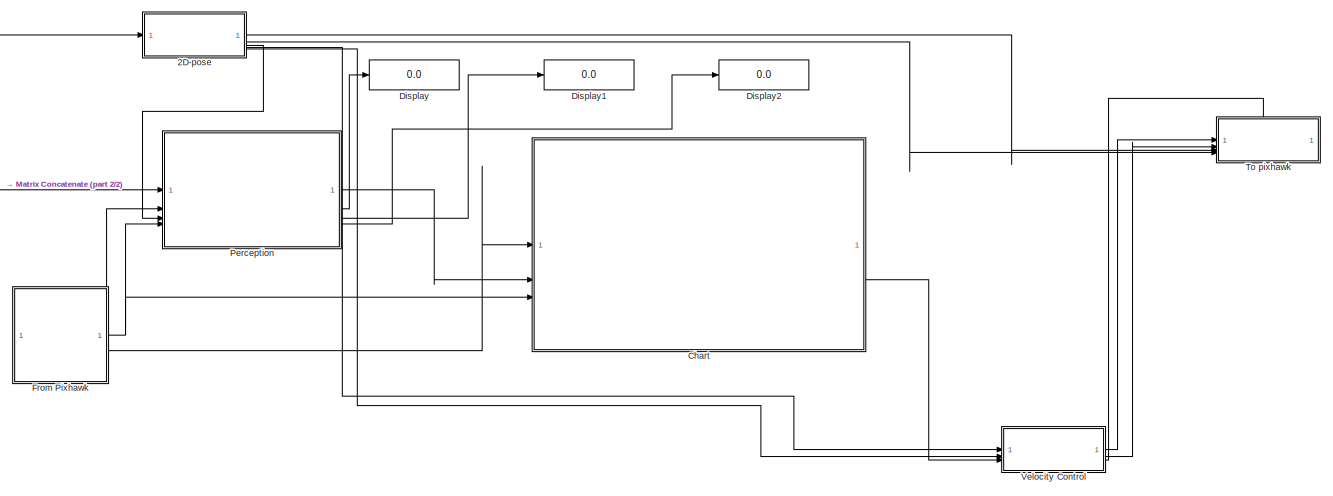
[diagram: root canvas - part 1/2, most of the canvas]
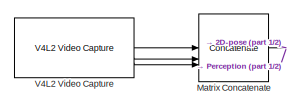
[diagram: root canvas - part 2/2, middle left region]
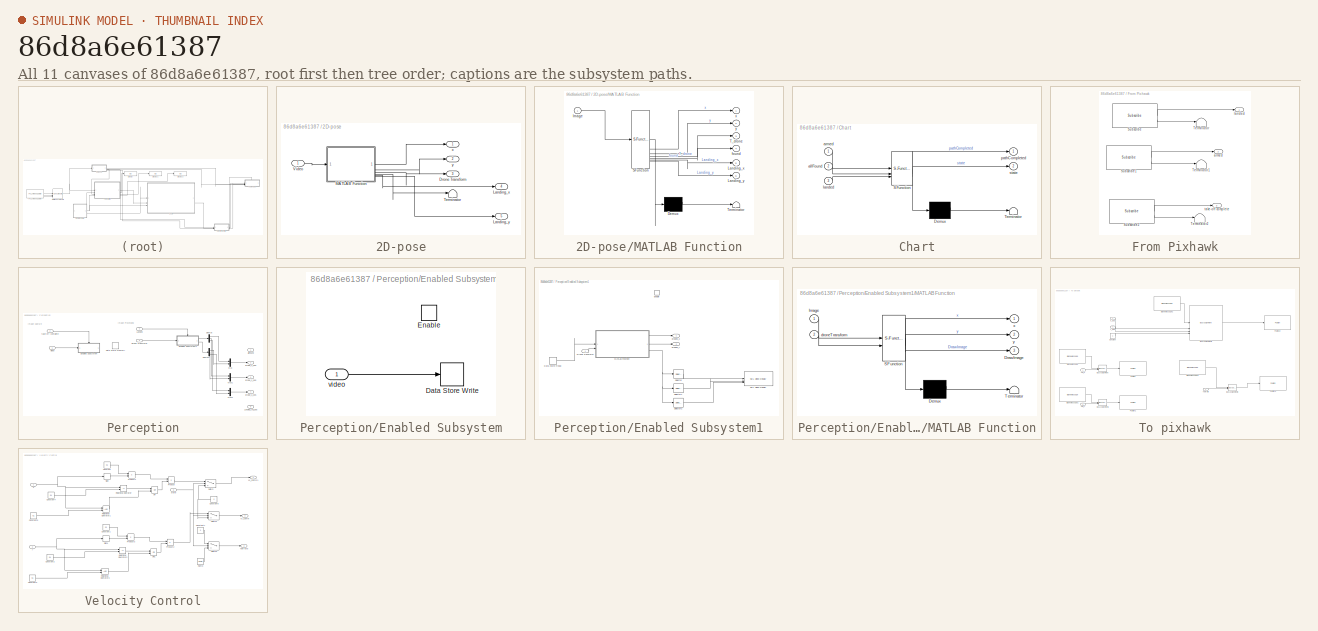
[diagram: thumbnail index - all 11 canvases of the model, root first then tree order]
MODEL slx_86d8a6e61387
KIND model
CONFIG AbsTol = auto
CONFIG EnableMultiTasking = off
CONFIG FixedStep = auto
CONFIG MaxStep = auto
CONFIG MinStep = auto
CONFIG RelTol = 1e-3
CONFIG SampleTimeConstraint = Unconstrained
CONFIG SolverName = VariableStepAuto
CONFIG StartTime = 0.0
CONFIG StopTime = 10.0
BLOCK [SubSystem] 2D-pose
BLOCK [Outport] 2D-pose/Drone Transform
  Port = 3
BLOCK [Outport] 2D-pose/Landing_x
  Port = 4
BLOCK [Outport] 2D-pose/Landing_y
  Port = 5
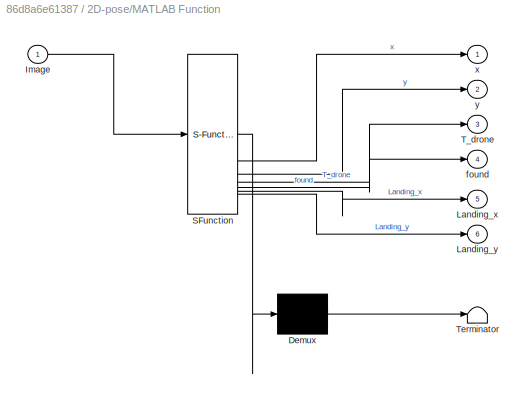
BLOCK [SubSystem] 2D-pose/MATLAB Function
  ErrorFcn = Stateflow.Translate.translate
  PermitHierarchicalResolution = ExplicitOnly
  SFBlockType = MATLAB Function
  TreatAsAtomicUnit = on
BLOCK [Demux] 2D-pose/MATLAB Function/ Demux 
  Outputs = 1
BLOCK [S-Function] 2D-pose/MATLAB Function/ SFunction 
  EnableBusSupport = off
  FunctionName = sf_sfun
  PortCounts = [1 7]
  SFcnIsStateOwnerBlock = off
  SFunctionDeploymentMode = off
  Tag = Stateflow S-Function 2
BLOCK [Terminator] 2D-pose/MATLAB Function/ Terminator 
BLOCK [Inport] 2D-pose/MATLAB Function/Image
BLOCK [Outport] 2D-pose/MATLAB Function/Landing_x
  Port = 5
BLOCK [Outport] 2D-pose/MATLAB Function/Landing_y
  Port = 6
BLOCK [Outport] 2D-pose/MATLAB Function/T_drone
  Port = 3
BLOCK [Outport] 2D-pose/MATLAB Function/found
  Port = 4
BLOCK [Outport] 2D-pose/MATLAB Function/x
BLOCK [Outport] 2D-pose/MATLAB Function/y
  Port = 2
BLOCK [Terminator] 2D-pose/Terminator
BLOCK [Inport] 2D-pose/Video
BLOCK [Outport] 2D-pose/x
BLOCK [Outport] 2D-pose/y
  Port = 2
BLOCK [SubSystem] Chart
  ErrorFcn = Stateflow.Translate.translate
  PermitHierarchicalResolution = ExplicitOnly
  SFBlockType = Chart
  TreatAsAtomicUnit = on
BLOCK [Demux] Chart/ Demux 
  Outputs = 1
BLOCK [S-Function] Chart/ SFunction 
  EnableBusSupport = off
  FunctionName = sf_sfun
  Parameters = N
  PortCounts = [3 3]
  SFcnIsStateOwnerBlock = off
  SFunctionDeploymentMode = off
  Tag = Stateflow S-Function 3
BLOCK [Terminator] Chart/ Terminator 
BLOCK [Inport] Chart/allFound
  Port = 2
BLOCK [Inport] Chart/armed
BLOCK [Inport] Chart/landed
  Port = 3
BLOCK [Outport] Chart/pathCompleted
BLOCK [Outport] Chart/state
  Port = 2
BLOCK [Display] Display
  Decimation = 1
BLOCK [Display] Display1
  Decimation = 1
BLOCK [Display] Display2
  Decimation = 1
BLOCK [SubSystem] From Pixhawk
  PortSchema = {"entries":[{"content":{"sides":[{"content":{},"type":"ConnectorPlacement.EquallySpacedRectSide","uuid":"29bd3f1b-5f03-459e-babc-fb78703a611f"},{"content":{"connectorIds":["Out1","Out2"],"side":"RIGHT"},"type":"ConnectorPlacement.EquallySpacedRectSide","uuid":"446dcb00-f922-45fa-b479-2a173130e87e"},{"content":{"connectorIds":["Out3"],"side":"TOP"},"type":"ConnectorPlacement.EquallySpacedRectSide",...<+231ch>
BLOCK [Reference] From Pixhawk/Subscribe  REF=robotlib/Subscribe
  SourceBlock = robotlib/Subscribe
  SourceType = ROS Subscribe
BLOCK [Reference] From Pixhawk/Subscribe1  REF=robotlib/Subscribe
  SourceBlock = robotlib/Subscribe
  SourceType = ROS Subscribe
BLOCK [Reference] From Pixhawk/Subscribe2  REF=robotlib/Subscribe
  SourceBlock = robotlib/Subscribe
  SourceType = ROS Subscribe
BLOCK [Terminator] From Pixhawk/Terminator
BLOCK [Terminator] From Pixhawk/Terminator1
BLOCK [Terminator] From Pixhawk/Terminator2
BLOCK [Outport] From Pixhawk/armed
  Port = 2
BLOCK [Outport] From Pixhawk/landed
BLOCK [Outport] From Pixhawk/take-off complete
  Port = 3
BLOCK [Concatenate] Matrix Concatenate
  ConcatenateDimension = 3
  Mode = Multidimensional array
  NumInputs = 3
BLOCK [SubSystem] Perception
BLOCK [DataStoreMemory] Perception/Data Store Memory
  DataStoreName = image
  ShowAdditionalParam = off
  WriteAfterWriteMsg = warning
BLOCK [Demux] Perception/Demux
  Outputs = 3
BLOCK [Demux] Perception/Demux1
  Outputs = 3
BLOCK [Inport] Perception/Drone Transform
  Port = 3
BLOCK [SubSystem] Perception/Enabled Subsystem
  TreatAsAtomicUnit = on
BLOCK [DataStoreWrite] Perception/Enabled Subsystem/Data Store Write
  DataStoreName = image
  IndexOptions = Index vector (dialog)
  Indices = 1
  OutputSizes = 1
BLOCK [EnablePort] Perception/Enabled Subsystem/Enable
BLOCK [Inport] Perception/Enabled Subsystem/video
BLOCK [SubSystem] Perception/Enabled Subsystem1
  TreatAsAtomicUnit = on
BLOCK [DataStoreRead] Perception/Enabled Subsystem1/Data Store Read
  DataStoreName = image
  IndexOptions = Index vector (dialog)
  Indices = 1
  OutputSizes = 1
BLOCK [Inport] Perception/Enabled Subsystem1/Drone Transform
BLOCK [EnablePort] Perception/Enabled Subsystem1/Enable
BLOCK [SubSystem] Perception/Enabled Subsystem1/MATLAB Function
  ErrorFcn = Stateflow.Translate.translate
  PermitHierarchicalResolution = ExplicitOnly
  SFBlockType = MATLAB Function
  TreatAsAtomicUnit = on
BLOCK [Demux] Perception/Enabled Subsystem1/MATLAB Function/ Demux 
  Outputs = 1
BLOCK [S-Function] Perception/Enabled Subsystem1/MATLAB Function/ SFunction 
  EnableBusSupport = on
  FunctionName = sf_sfun
  PortCounts = [2 4]
  SFcnIsStateOwnerBlock = off
  SFunctionDeploymentMode = off
  Tag = Stateflow S-Function 1
BLOCK [Terminator] Perception/Enabled Subsystem1/MATLAB Function/ Terminator 
BLOCK [Outport] Perception/Enabled Subsystem1/MATLAB Function/DrawImage
  Port = 3
BLOCK [Inport] Perception/Enabled Subsystem1/MATLAB Function/Image
BLOCK [Inport] Perception/Enabled Subsystem1/MATLAB Function/droneTransform
  Port = 2
BLOCK [Outport] Perception/Enabled Subsystem1/MATLAB Function/x
BLOCK [Outport] Perception/Enabled Subsystem1/MATLAB Function/y
  Port = 2
BLOCK [Reference] Perception/Enabled Subsystem1/SDL Video Display  REF=raspberrypiAVlib/SDL Video Display
  SourceBlock = raspberrypiAVlib/SDL Video Display
  SourceType = SDL Video Display
BLOCK [Selector] Perception/Enabled Subsystem1/Selector
  IndexOptions = Select all,Select all,Index vector (dialog)
  Indices = [1 3],1,1
  InputPortWidth = 3
  NumberOfDimensions = 3
  OutputSizes = 1,1,1
BLOCK [Selector] Perception/Enabled Subsystem1/Selector1
  IndexOptions = Select all,Select all,Index vector (dialog)
  Indices = [1 3],1,2
  InputPortWidth = 3
  NumberOfDimensions = 3
  OutputSizes = 1,1,1
BLOCK [Selector] Perception/Enabled Subsystem1/Selector2
  IndexOptions = Select all,Select all,Index vector (dialog)
  Indices = [1 3],1,3
  InputPortWidth = 3
  NumberOfDimensions = 3
  OutputSizes = 1,1,1
BLOCK [Outport] Perception/Enabled Subsystem1/probes_x
BLOCK [Outport] Perception/Enabled Subsystem1/probes_y
  Port = 2
BLOCK [Inport] Perception/Landed
  Port = 4
BLOCK [Outport] Perception/Landing_rel_pos
  Port = 5
BLOCK [Mux] Perception/Mux
  DisplayOption = bar
  Inputs = 2
BLOCK [Mux] Perception/Mux1
  DisplayOption = bar
  Inputs = 2
BLOCK [Mux] Perception/Mux2
  DisplayOption = bar
  Inputs = 2
BLOCK [Inport] Perception/Video
BLOCK [Outport] Perception/allFound
BLOCK [Outport] Perception/probe_1_pos
  Port = 2
BLOCK [Outport] Perception/probe_2_pos
  Port = 3
BLOCK [Outport] Perception/probe_3_pos
  Port = 4
BLOCK [Inport] Perception/take-off complete
  NameLocation = top
  Port = 2
BLOCK [SubSystem] To pixhawk
  PortSchema = {"entries":[{"content":{"sides":[{"content":{"connectorIds":["In1","In2","In3","In4"]},"type":"ConnectorPlacement.EquallySpacedRectSide","uuid":"e89dec50-de92-44c8-92fb-db32be5659b3"},{"content":{"side":"RIGHT"},"type":"ConnectorPlacement.EquallySpacedRectSide","uuid":"49755b31-d2a6-46fc-b494-b720481b867f"},{"content":{"connectorIds":["In5"],"side":"TOP"},"type":"ConnectorPlacement.EquallySpacedRe...<+239ch>
BLOCK [Reference] To pixhawk/Blank Message  REF=robotlib/Blank Message
  SourceBlock = robotlib/Blank Message
  SourceType = ROS Blank Message
BLOCK [Reference] To pixhawk/Blank Message1  REF=robotlib/Blank Message
  SourceBlock = robotlib/Blank Message
  SourceType = ROS Blank Message
BLOCK [Reference] To pixhawk/Blank Message2  REF=robotlib/Blank Message
  SourceBlock = robotlib/Blank Message
  SourceType = ROS Blank Message
BLOCK [Reference] To pixhawk/Blank Message3  REF=robotlib/Blank Message
  SourceBlock = robotlib/Blank Message
  SourceType = ROS Blank Message
BLOCK [BusAssignment] To pixhawk/Bus Assignment
  AssignedSignals = Data
BLOCK [BusAssignment] To pixhawk/Bus Assignment1
  AssignedSignals = Data
BLOCK [BusAssignment] To pixhawk/Bus Assignment2
  AssignedSignals = X,Y,Z
BLOCK [BusAssignment] To pixhawk/Bus Assignment3
  AssignedSignals = Data
BLOCK [Constant] To pixhawk/Constant
  OutDataTypeStr = Inherit: Inherit via back propagation
  Value = 0
BLOCK [Reference] To pixhawk/Publish  REF=robotlib/Publish
  SourceBlock = robotlib/Publish
  SourceType = ROS Publish
BLOCK [Reference] To pixhawk/Publish1  REF=robotlib/Publish
  SourceBlock = robotlib/Publish
  SourceType = ROS Publish
BLOCK [Reference] To pixhawk/Publish2  REF=robotlib/Publish
  SourceBlock = robotlib/Publish
  SourceType = ROS Publish
BLOCK [Reference] To pixhawk/Publish3  REF=robotlib/Publish
  SourceBlock = robotlib/Publish
  SourceType = ROS Publish
BLOCK [Inport] To pixhawk/Yaw rate
  Port = 5
BLOCK [Inport] To pixhawk/vel_x
BLOCK [Inport] To pixhawk/vel_y
  Port = 2
BLOCK [Inport] To pixhawk/x_pos
  Port = 3
BLOCK [Inport] To pixhawk/y_pos
  Port = 4
BLOCK [Reference] V4L2 Video Capture  REF=raspberrypiAVlib/V4L2 Video Capture
  SourceBlock = raspberrypiAVlib/V4L2 Video Capture
  SourceType = codertarget.raspi.internal.Raspiv4l2Capture
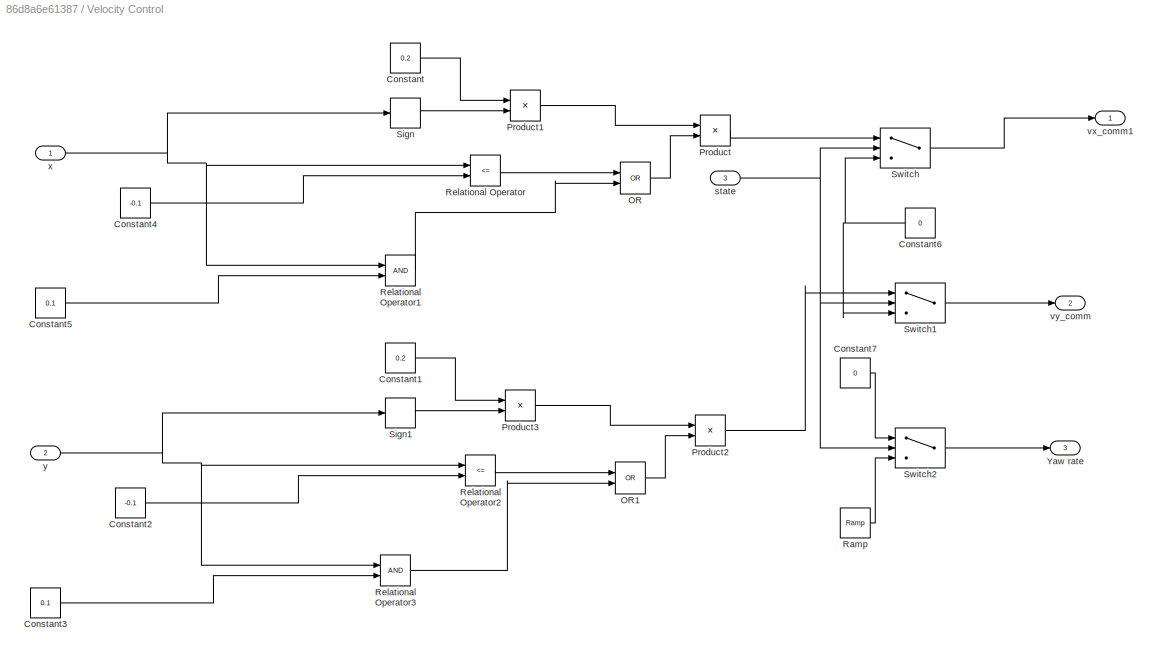
BLOCK [SubSystem] Velocity Control
BLOCK [Constant] Velocity Control/Constant
  Value = 0.2
BLOCK [Constant] Velocity Control/Constant1
  Value = 0.2
BLOCK [Constant] Velocity Control/Constant2
  Value = -0.1
BLOCK [Constant] Velocity Control/Constant3
  Value = 0.1
BLOCK [Constant] Velocity Control/Constant4
  Value = -0.1
BLOCK [Constant] Velocity Control/Constant5
  Value = 0.1
BLOCK [Constant] Velocity Control/Constant6
  NameLocation = top
  Value = 0
BLOCK [Constant] Velocity Control/Constant7
  Value = 0
BLOCK [Logic] Velocity Control/OR
  AllPortsSameDT = off
  IconShape = distinctive
  Operator = OR
  OutDataTypeStr = boolean
BLOCK [Logic] Velocity Control/OR1
  AllPortsSameDT = off
  IconShape = distinctive
  Operator = OR
  OutDataTypeStr = boolean
BLOCK [Product] Velocity Control/Product
BLOCK [Product] Velocity Control/Product1
BLOCK [Product] Velocity Control/Product2
BLOCK [Product] Velocity Control/Product3
BLOCK [Reference] Velocity Control/Ramp  REF=simulink/Sources/Ramp
  SourceBlock = simulink/Sources/Ramp
  SourceType = Ramp
BLOCK [RelationalOperator] Velocity Control/Relational Operator
  InputSameDT = off
  Operator = <=
  OutDataTypeStr = boolean
  RndMeth = Simplest
BLOCK [RelationalOperator] Velocity Control/Relational Operator1
  InputSameDT = off
  OutDataTypeStr = boolean
  RndMeth = Simplest
BLOCK [RelationalOperator] Velocity Control/Relational Operator2
  InputSameDT = off
  Operator = <=
  OutDataTypeStr = boolean
  RndMeth = Simplest
BLOCK [RelationalOperator] Velocity Control/Relational Operator3
  InputSameDT = off
  OutDataTypeStr = boolean
  RndMeth = Simplest
BLOCK [Signum] Velocity Control/Sign
BLOCK [Signum] Velocity Control/Sign1
BLOCK [Switch] Velocity Control/Switch
  Criteria = u2 > Threshold
  InputSameDT = off
  SaturateOnIntegerOverflow = off
  Threshold = 2
BLOCK [Switch] Velocity Control/Switch1
  Criteria = u2 > Threshold
  InputSameDT = off
  SaturateOnIntegerOverflow = off
  Threshold = 2
BLOCK [Switch] Velocity Control/Switch2
  Criteria = u2 > Threshold
  InputSameDT = off
  SaturateOnIntegerOverflow = off
  Threshold = 2
BLOCK [Outport] Velocity Control/Yaw rate
  Port = 3
BLOCK [Inport] Velocity Control/state
  Port = 3
BLOCK [Outport] Velocity Control/vx_comm1
BLOCK [Outport] Velocity Control/vy_comm
  Port = 2
BLOCK [Inport] Velocity Control/x
BLOCK [Inport] Velocity Control/y
  Port = 2
ANNOTATION Perception: Image Capture
ANNOTATION Perception: Image Processing
LINE 2D-pose/MATLAB Function:1 -> 2D-pose/x:1
LINE 2D-pose/MATLAB Function:2 -> 2D-pose/y:1
LINE 2D-pose/MATLAB Function:3 -> 2D-pose/Drone Transform:1
LINE 2D-pose/MATLAB Function:4 -> 2D-pose/Terminator:1
LINE 2D-pose/MATLAB Function:5 -> 2D-pose/Landing_x:1
LINE 2D-pose/MATLAB Function:6 -> 2D-pose/Landing_y:1
LINE 2D-pose/Video:1 -> 2D-pose/MATLAB Function:1
LINE 2D-pose:1 -> To pixhawk:3
LINE 2D-pose:2 -> To pixhawk:4
LINE 2D-pose:3 -> Perception:3
LINE 2D-pose:4 -> Velocity Control:1
LINE 2D-pose:5 -> Velocity Control:2
LINE Chart:2 -> Velocity Control:3
LINE From Pixhawk/Subscribe1:1 -> From Pixhawk/armed:1
LINE From Pixhawk/Subscribe1:2 -> From Pixhawk/Terminator1:1
LINE From Pixhawk/Subscribe2:1 -> From Pixhawk/take-off complete:1
LINE From Pixhawk/Subscribe2:2 -> From Pixhawk/Terminator2:1
LINE From Pixhawk/Subscribe:1 -> From Pixhawk/landed:1
LINE From Pixhawk/Subscribe:2 -> From Pixhawk/Terminator:1
NET From Pixhawk:1 -> Chart:3, Perception:4
LINE From Pixhawk:2 -> Chart:1
LINE From Pixhawk:3 -> Perception:2
NET Matrix Concatenate:1 -> 2D-pose:1, Perception:1
LINE Perception/Demux1:1 -> Perception/Mux:2
LINE Perception/Demux1:2 -> Perception/Mux1:2
LINE Perception/Demux1:3 -> Perception/Mux2:2
LINE Perception/Demux:1 -> Perception/Mux:1
LINE Perception/Demux:2 -> Perception/Mux1:1
LINE Perception/Demux:3 -> Perception/Mux2:1
LINE Perception/Drone Transform:1 -> Perception/Enabled Subsystem1:1
LINE Perception/Enabled Subsystem/video:1 -> Perception/Enabled Subsystem/Data Store Write:1
LINE Perception/Enabled Subsystem1/Data Store Read:1 -> Perception/Enabled Subsystem1/MATLAB Function:1
LINE Perception/Enabled Subsystem1/Drone Transform:1 -> Perception/Enabled Subsystem1/MATLAB Function:2
LINE Perception/Enabled Subsystem1/MATLAB Function:1 -> Perception/Enabled Subsystem1/probes_x:1
LINE Perception/Enabled Subsystem1/MATLAB Function:2 -> Perception/Enabled Subsystem1/probes_y:1
NET Perception/Enabled Subsystem1/MATLAB Function:3 -> Perception/Enabled Subsystem1/Selector1:1, Perception/Enabled Subsystem1/Selector2:1, Perception/Enabled Subsystem1/Selector:1
LINE Perception/Enabled Subsystem1/Selector1:1 -> Perception/Enabled Subsystem1/SDL Video Display:2
LINE Perception/Enabled Subsystem1/Selector2:1 -> Perception/Enabled Subsystem1/SDL Video Display:3
LINE Perception/Enabled Subsystem1/Selector:1 -> Perception/Enabled Subsystem1/SDL Video Display:1
LINE Perception/Enabled Subsystem1:1 -> Perception/Demux:1
LINE Perception/Enabled Subsystem1:2 -> Perception/Demux1:1
LINE Perception/Landed:1 -> Perception/Enabled Subsystem1:enable
LINE Perception/Mux1:1 -> Perception/probe_2_pos:1
LINE Perception/Mux2:1 -> Perception/probe_3_pos:1
LINE Perception/Mux:1 -> Perception/probe_1_pos:1
LINE Perception/Video:1 -> Perception/Enabled Subsystem:1
LINE Perception/take-off complete:1 -> Perception/Enabled Subsystem:enable
LINE Perception:1 -> Chart:2
LINE Perception:2 -> Display:1
LINE Perception:3 -> Display1:1
LINE Perception:4 -> Display2:1
LINE To pixhawk/Blank Message1:1 -> To pixhawk/Bus Assignment1:1
LINE To pixhawk/Blank Message2:1 -> To pixhawk/Bus Assignment2:1
LINE To pixhawk/Blank Message3:1 -> To pixhawk/Bus Assignment3:1
LINE To pixhawk/Blank Message:1 -> To pixhawk/Bus Assignment:1
LINE To pixhawk/Bus Assignment1:1 -> To pixhawk/Publish1:1
LINE To pixhawk/Bus Assignment2:1 -> To pixhawk/Publish2:1
LINE To pixhawk/Bus Assignment3:1 -> To pixhawk/Publish3:1
LINE To pixhawk/Bus Assignment:1 -> To pixhawk/Publish:1
LINE To pixhawk/Constant:1 -> To pixhawk/Bus Assignment2:4
LINE To pixhawk/Yaw rate:1 -> To pixhawk/Bus Assignment3:2
LINE To pixhawk/vel_x:1 -> To pixhawk/Bus Assignment:2
LINE To pixhawk/vel_y:1 -> To pixhawk/Bus Assignment1:2
LINE To pixhawk/x_pos:1 -> To pixhawk/Bus Assignment2:2
LINE To pixhawk/y_pos:1 -> To pixhawk/Bus Assignment2:3
LINE V4L2 Video Capture:1 -> Matrix Concatenate:1
LINE V4L2 Video Capture:2 -> Matrix Concatenate:2
LINE V4L2 Video Capture:3 -> Matrix Concatenate:3
LINE Velocity Control/Constant1:1 -> Velocity Control/Product3:1
LINE Velocity Control/Constant2:1 -> Velocity Control/Relational Operator2:2
LINE Velocity Control/Constant3:1 -> Velocity Control/Relational Operator3:2
LINE Velocity Control/Constant4:1 -> Velocity Control/Relational Operator:2
LINE Velocity Control/Constant5:1 -> Velocity Control/Relational Operator1:2
NET Velocity Control/Constant6:1 -> Velocity Control/Switch1:3, Velocity Control/Switch:3
LINE Velocity Control/Constant7:1 -> Velocity Control/Switch2:1
LINE Velocity Control/Constant:1 -> Velocity Control/Product1:1
LINE Velocity Control/OR1:1 -> Velocity Control/Product2:2
LINE Velocity Control/OR:1 -> Velocity Control/Product:2
LINE Velocity Control/Product1:1 -> Velocity Control/Product:1
LINE Velocity Control/Product2:1 -> Velocity Control/Switch1:1
LINE Velocity Control/Product3:1 -> Velocity Control/Product2:1
LINE Velocity Control/Product:1 -> Velocity Control/Switch:1
LINE Velocity Control/Ramp:1 -> Velocity Control/Switch2:3
LINE Velocity Control/Relational Operator1:1 -> Velocity Control/OR:2
LINE Velocity Control/Relational Operator2:1 -> Velocity Control/OR1:1
LINE Velocity Control/Relational Operator3:1 -> Velocity Control/OR1:2
LINE Velocity Control/Relational Operator:1 -> Velocity Control/OR:1
LINE Velocity Control/Sign1:1 -> Velocity Control/Product3:2
LINE Velocity Control/Sign:1 -> Velocity Control/Product1:2
LINE Velocity Control/Switch1:1 -> Velocity Control/vy_comm:1
LINE Velocity Control/Switch2:1 -> Velocity Control/Yaw rate:1
LINE Velocity Control/Switch:1 -> Velocity Control/vx_comm1:1
NET Velocity Control/state:1 -> Velocity Control/Switch1:2, Velocity Control/Switch2:2, Velocity Control/Switch:2
NET Velocity Control/x:1 -> Velocity Control/Relational Operator1:1, Velocity Control/Relational Operator:1, Velocity Control/Sign:1
NET Velocity Control/y:1 -> Velocity Control/Relational Operator2:1, Velocity Control/Relational Operator3:1, Velocity Control/Sign1:1
LINE Velocity Control:1 -> To pixhawk:1
LINE Velocity Control:2 -> To pixhawk:2
LINE Velocity Control:3 -> To pixhawk:5
note: NET lines group one-source signal fan-out (src -> all destinations, sorted); 1:1 wires keep LINE
CHART Perception/Enabled
Subsystem1/MATLAB Function states=1 transitions=1
  STATE_LABEL 'eML_blk_kernel()'
  STATE_LABEL 'SCRIPT:\nfunction [x,y,DrawImage] = fcn(Image,droneTransform)\npersistent intrinsics\n%% initializing persistent variables\nif((isempty(intrinsics)))\n    StoredX=0;\n    StoredY=0;\n    focalLength = [120, 120];\n    principalPoint = [160.5, 120.5];\n    imageSize = [240, 320];\n    radialDistortion = [0.000000, 0.000000];\n    tangentialDistortion = [0.000000, 0.000000];\n    intrinsics = cameraIntrinsics(f...<+749ch>'
CHART 2D-pose/MATLAB Function states=1 transitions=1
  STATE_LABEL 'eML_blk_kernel()'
  STATE_LABEL 'SCRIPT:\nfunction [x,y,T_drone,found,Landing_x,Landing_y] = Localize(Image)\npersistent initialized PinIntrinsics;\n%% initialiazing variables\nx=0;\ny=0;\nfound=true;\nif((isempty(initialized)))\n    StoredX=0;\n    StoredY=0;\n    focalLength = [120, 120];\n    principalPoint = [160.5, 120.5];\n    imageSize = [240, 320];\n    radialDistortion = [0.000000, 0.000000];\n    tangentialDistortion = [0.000000, 0.0...<+1659ch>'
CHART Chart states=3 transitions=4
  STATE_LABEL 'Idle\nentry:\npathCompleted=0;'
  STATE_LABEL 'StaticSearch\nentry:\nstate=1\n%%takeoff to desired height\n%%rotate full circle'
  STATE_LABEL 'GoToLand\nentry:\nstate=3\n%%land'
CHART  states=0 transitions=0
CHART  states=0 transitions=0
CHART  states=0 transitions=0
